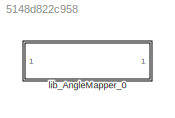
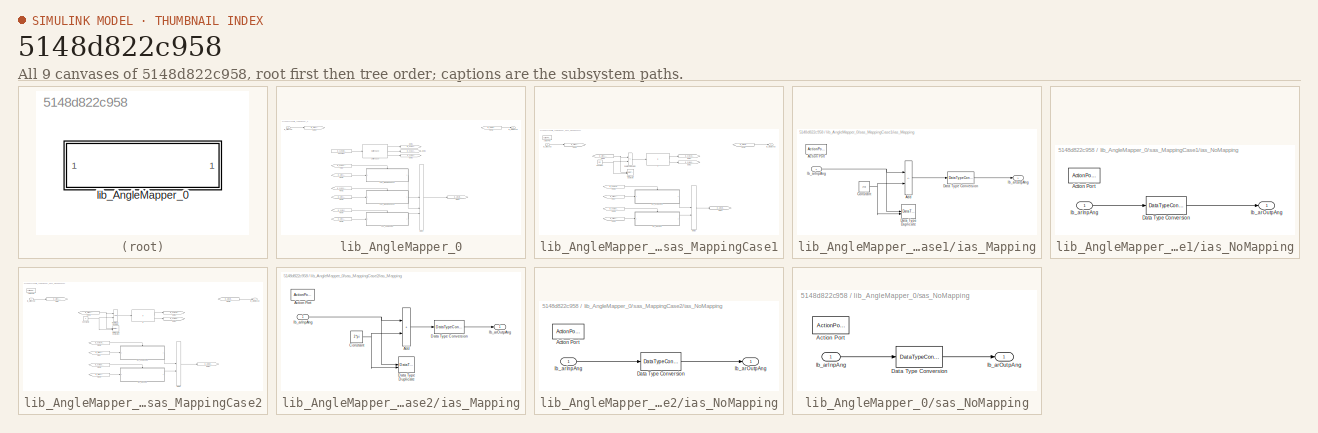
[diagram: thumbnail index - all 9 canvases of the model, root first then tree order]
MODEL slx_5148d822c958
KIND library
CONFIG AbsTol = auto
CONFIG EnableMultiTasking = off
CONFIG FixedStep = auto
CONFIG MaxStep = auto
CONFIG MinStep = auto
CONFIG RelTol = 1e-3
CONFIG SampleTimeConstraint = Unconstrained
CONFIG SolverName = VariableStepAuto
CONFIG StartTime = 0.0
CONFIG StopTime = 10.0
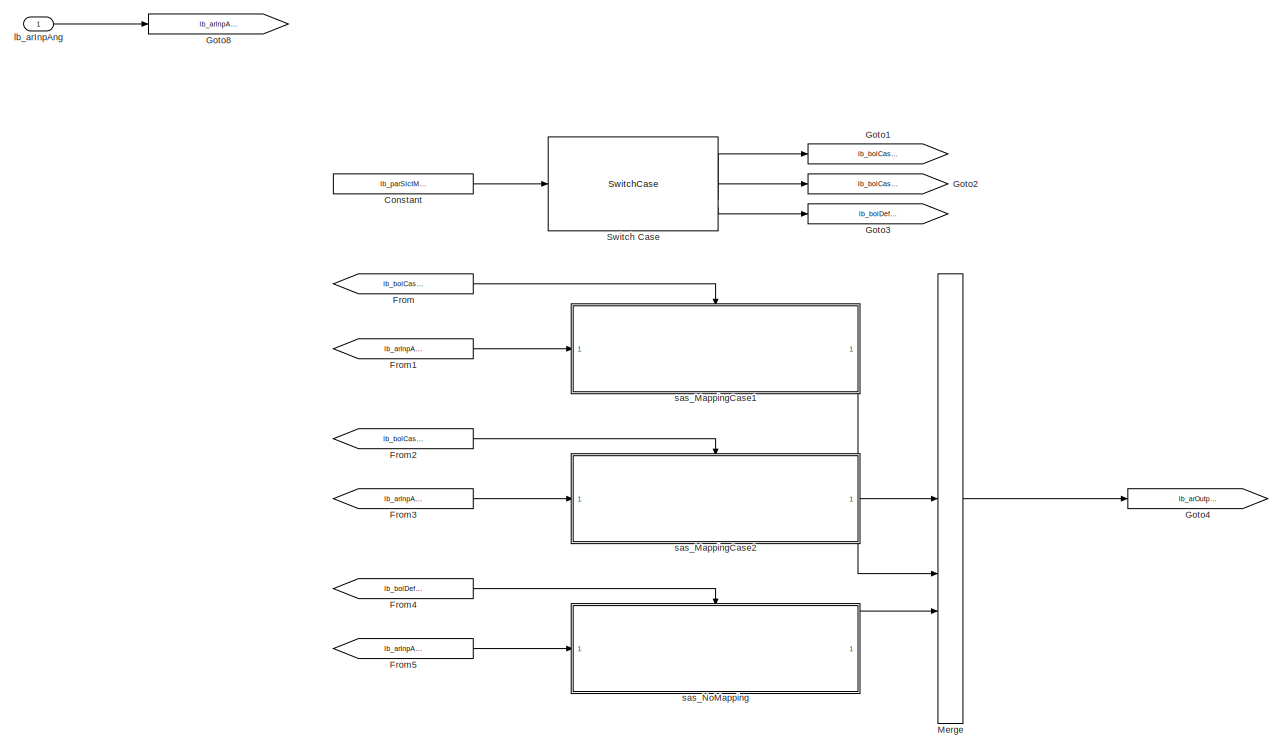
[diagram: lib_AngleMapper_0 - part 1/2, most of the canvas]
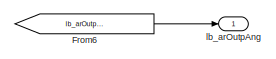
[diagram: lib_AngleMapper_0 - part 2/2, top right region]
BLOCK [SubSystem] lib_AngleMapper_0
BLOCK [Constant] lib_AngleMapper_0/Constant
  OutDataTypeStr = uint8
  Value = lb_parSlctMappModeNum
BLOCK [From] lib_AngleMapper_0/From
  GotoTag = lb_bolCase1
BLOCK [From] lib_AngleMapper_0/From1
  GotoTag = lb_arInpAng
BLOCK [From] lib_AngleMapper_0/From2
  GotoTag = lb_bolCase2
BLOCK [From] lib_AngleMapper_0/From3
  GotoTag = lb_arInpAng
BLOCK [From] lib_AngleMapper_0/From4
  GotoTag = lb_bolDefCase
BLOCK [From] lib_AngleMapper_0/From5
  GotoTag = lb_arInpAng
BLOCK [From] lib_AngleMapper_0/From6
  GotoTag = lb_arOutpAng
BLOCK [Goto] lib_AngleMapper_0/Goto1
  GotoTag = lb_bolCase1
BLOCK [Goto] lib_AngleMapper_0/Goto2
  GotoTag = lb_bolCase2
BLOCK [Goto] lib_AngleMapper_0/Goto3
  GotoTag = lb_bolDefCase
BLOCK [Goto] lib_AngleMapper_0/Goto4
  GotoTag = lb_arOutpAng
BLOCK [Goto] lib_AngleMapper_0/Goto8
  GotoTag = lb_arInpAng
BLOCK [Merge] lib_AngleMapper_0/Merge
  Inputs = 3
BLOCK [SwitchCase] lib_AngleMapper_0/Switch Case
  CaseConditions = {1,2}
BLOCK [Inport] lib_AngleMapper_0/lb_arInpAng
BLOCK [Outport] lib_AngleMapper_0/lb_arOutpAng
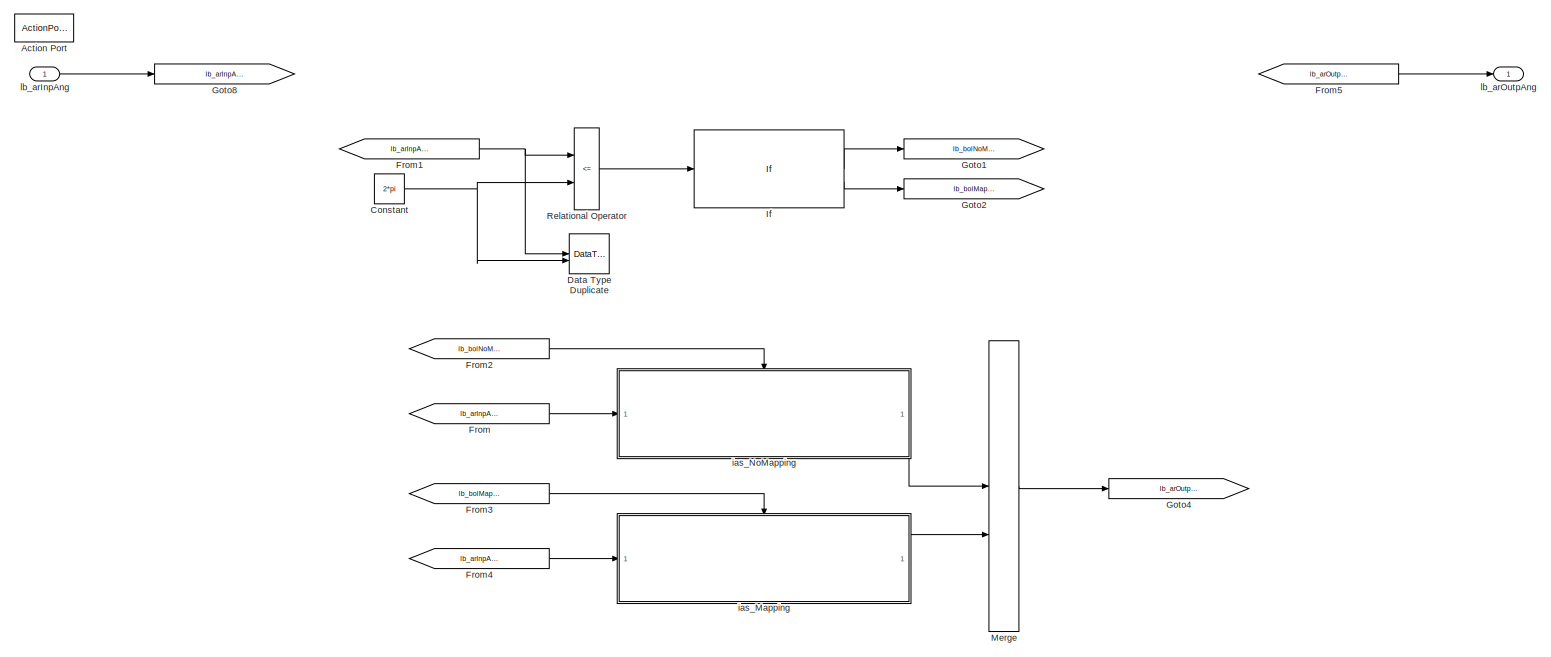
[diagram: lib_AngleMapper_0/sas_MappingCase1 - part 1/1, most of the canvas]
BLOCK [SubSystem] lib_AngleMapper_0/sas_MappingCase1
  TreatAsAtomicUnit = on
BLOCK [ActionPort] lib_AngleMapper_0/sas_MappingCase1/Action Port
BLOCK [Constant] lib_AngleMapper_0/sas_MappingCase1/Constant
  OutDataTypeStr = Inherit: Inherit via back propagation
  Value = 2*pi
BLOCK [DataTypeDuplicate] lib_AngleMapper_0/sas_MappingCase1/Data Type Duplicate
BLOCK [From] lib_AngleMapper_0/sas_MappingCase1/From
  GotoTag = lb_arInpAng
BLOCK [From] lib_AngleMapper_0/sas_MappingCase1/From1
  GotoTag = lb_arInpAng
BLOCK [From] lib_AngleMapper_0/sas_MappingCase1/From2
  GotoTag = lb_bolNoMappEnbl
BLOCK [From] lib_AngleMapper_0/sas_MappingCase1/From3
  GotoTag = lb_bolMappEnbl
BLOCK [From] lib_AngleMapper_0/sas_MappingCase1/From4
  GotoTag = lb_arInpAng
BLOCK [From] lib_AngleMapper_0/sas_MappingCase1/From5
  GotoTag = lb_arOutpAng
BLOCK [Goto] lib_AngleMapper_0/sas_MappingCase1/Goto1
  GotoTag = lb_bolNoMappEnbl
BLOCK [Goto] lib_AngleMapper_0/sas_MappingCase1/Goto2
  GotoTag = lb_bolMappEnbl
BLOCK [Goto] lib_AngleMapper_0/sas_MappingCase1/Goto4
  GotoTag = lb_arOutpAng
BLOCK [Goto] lib_AngleMapper_0/sas_MappingCase1/Goto8
  GotoTag = lb_arInpAng
BLOCK [If] lib_AngleMapper_0/sas_MappingCase1/If
  IfExpression = u1
BLOCK [Merge] lib_AngleMapper_0/sas_MappingCase1/Merge
BLOCK [RelationalOperator] lib_AngleMapper_0/sas_MappingCase1/Relational Operator
  InputSameDT = off
  Operator = <=
  OutDataTypeStr = boolean
  RndMeth = Simplest
BLOCK [SubSystem] lib_AngleMapper_0/sas_MappingCase1/ias_Mapping
  TreatAsAtomicUnit = on
BLOCK [ActionPort] lib_AngleMapper_0/sas_MappingCase1/ias_Mapping/Action Port
BLOCK [Sum] lib_AngleMapper_0/sas_MappingCase1/ias_Mapping/Add
  IconShape = rectangular
  Inputs = +-
  OutDataTypeStr = Inherit: Same as first input
BLOCK [Constant] lib_AngleMapper_0/sas_MappingCase1/ias_Mapping/Constant
  OutDataTypeStr = Inherit: Inherit via back propagation
  Value = 2*pi
BLOCK [DataTypeConversion] lib_AngleMapper_0/sas_MappingCase1/ias_Mapping/Data Type Conversion
  OutDataTypeStr = lb_parOutpDataType
  RndMeth = Floor
  SaturateOnIntegerOverflow = off
BLOCK [DataTypeDuplicate] lib_AngleMapper_0/sas_MappingCase1/ias_Mapping/Data Type Duplicate
BLOCK [Inport] lib_AngleMapper_0/sas_MappingCase1/ias_Mapping/lb_arInpAng
BLOCK [Outport] lib_AngleMapper_0/sas_MappingCase1/ias_Mapping/lb_arOutpAng
BLOCK [SubSystem] lib_AngleMapper_0/sas_MappingCase1/ias_NoMapping
  TreatAsAtomicUnit = on
BLOCK [ActionPort] lib_AngleMapper_0/sas_MappingCase1/ias_NoMapping/Action Port
BLOCK [DataTypeConversion] lib_AngleMapper_0/sas_MappingCase1/ias_NoMapping/Data Type Conversion
  OutDataTypeStr = lb_parOutpDataType
  RndMeth = Floor
  SaturateOnIntegerOverflow = off
BLOCK [Inport] lib_AngleMapper_0/sas_MappingCase1/ias_NoMapping/lb_arInpAng
BLOCK [Outport] lib_AngleMapper_0/sas_MappingCase1/ias_NoMapping/lb_arOutpAng
BLOCK [Inport] lib_AngleMapper_0/sas_MappingCase1/lb_arInpAng
BLOCK [Outport] lib_AngleMapper_0/sas_MappingCase1/lb_arOutpAng
BLOCK [SubSystem] lib_AngleMapper_0/sas_MappingCase2
  TreatAsAtomicUnit = on
BLOCK [ActionPort] lib_AngleMapper_0/sas_MappingCase2/Action Port
BLOCK [Constant] lib_AngleMapper_0/sas_MappingCase2/Constant2
  OutDataTypeStr = Inherit: Inherit via back propagation
  Value = 0
BLOCK [DataTypeDuplicate] lib_AngleMapper_0/sas_MappingCase2/Data Type Duplicate2
BLOCK [From] lib_AngleMapper_0/sas_MappingCase2/From
  GotoTag = lb_arInpAng
BLOCK [From] lib_AngleMapper_0/sas_MappingCase2/From1
  GotoTag = lb_arInpAng
BLOCK [From] lib_AngleMapper_0/sas_MappingCase2/From2
  GotoTag = lb_bolNoMappEnbl
BLOCK [From] lib_AngleMapper_0/sas_MappingCase2/From3
  GotoTag = lb_bolMappEnbl
BLOCK [From] lib_AngleMapper_0/sas_MappingCase2/From4
  GotoTag = lb_arInpAng
BLOCK [From] lib_AngleMapper_0/sas_MappingCase2/From5
  GotoTag = lb_arOutpAng
BLOCK [Goto] lib_AngleMapper_0/sas_MappingCase2/Goto
  GotoTag = lb_arInpAng
BLOCK [Goto] lib_AngleMapper_0/sas_MappingCase2/Goto1
  GotoTag = lb_bolNoMappEnbl
BLOCK [Goto] lib_AngleMapper_0/sas_MappingCase2/Goto2
  GotoTag = lb_bolMappEnbl
BLOCK [Goto] lib_AngleMapper_0/sas_MappingCase2/Goto4
  GotoTag = lb_arOutpAng
BLOCK [If] lib_AngleMapper_0/sas_MappingCase2/If
  IfExpression = u1
BLOCK [Merge] lib_AngleMapper_0/sas_MappingCase2/Merge
BLOCK [RelationalOperator] lib_AngleMapper_0/sas_MappingCase2/Relational Operator1
  InputSameDT = off
  OutDataTypeStr = boolean
  RndMeth = Simplest
BLOCK [SubSystem] lib_AngleMapper_0/sas_MappingCase2/ias_Mapping
  TreatAsAtomicUnit = on
BLOCK [ActionPort] lib_AngleMapper_0/sas_MappingCase2/ias_Mapping/Action Port
BLOCK [Sum] lib_AngleMapper_0/sas_MappingCase2/ias_Mapping/Add
  IconShape = rectangular
  OutDataTypeStr = Inherit: Same as first input
BLOCK [Constant] lib_AngleMapper_0/sas_MappingCase2/ias_Mapping/Constant
  OutDataTypeStr = Inherit: Inherit via back propagation
  Value = 2*pi
BLOCK [DataTypeConversion] lib_AngleMapper_0/sas_MappingCase2/ias_Mapping/Data Type Conversion
  OutDataTypeStr = lb_parOutpDataType
  RndMeth = Floor
  SaturateOnIntegerOverflow = off
BLOCK [DataTypeDuplicate] lib_AngleMapper_0/sas_MappingCase2/ias_Mapping/Data Type Duplicate
BLOCK [Inport] lib_AngleMapper_0/sas_MappingCase2/ias_Mapping/lb_arInpAng
BLOCK [Outport] lib_AngleMapper_0/sas_MappingCase2/ias_Mapping/lb_arOutpAng
BLOCK [SubSystem] lib_AngleMapper_0/sas_MappingCase2/ias_NoMapping
  TreatAsAtomicUnit = on
BLOCK [ActionPort] lib_AngleMapper_0/sas_MappingCase2/ias_NoMapping/Action Port
BLOCK [DataTypeConversion] lib_AngleMapper_0/sas_MappingCase2/ias_NoMapping/Data Type Conversion
  OutDataTypeStr = lb_parOutpDataType
  RndMeth = Floor
  SaturateOnIntegerOverflow = off
BLOCK [Inport] lib_AngleMapper_0/sas_MappingCase2/ias_NoMapping/lb_arInpAng
BLOCK [Outport] lib_AngleMapper_0/sas_MappingCase2/ias_NoMapping/lb_arOutpAng
BLOCK [Inport] lib_AngleMapper_0/sas_MappingCase2/lb_arInpAng
BLOCK [Outport] lib_AngleMapper_0/sas_MappingCase2/lb_arOutpAng
BLOCK [SubSystem] lib_AngleMapper_0/sas_NoMapping
  TreatAsAtomicUnit = on
BLOCK [ActionPort] lib_AngleMapper_0/sas_NoMapping/Action Port
BLOCK [DataTypeConversion] lib_AngleMapper_0/sas_NoMapping/Data Type Conversion
  OutDataTypeStr = lb_parOutpDataType
  RndMeth = Floor
  SaturateOnIntegerOverflow = off
BLOCK [Inport] lib_AngleMapper_0/sas_NoMapping/lb_arInpAng
BLOCK [Outport] lib_AngleMapper_0/sas_NoMapping/lb_arOutpAng
LINE lib_AngleMapper_0/Constant:1 -> lib_AngleMapper_0/Switch Case:1
LINE lib_AngleMapper_0/From1:1 -> lib_AngleMapper_0/sas_MappingCase1:1
LINE lib_AngleMapper_0/From2:1 -> lib_AngleMapper_0/sas_MappingCase2:ifaction
LINE lib_AngleMapper_0/From3:1 -> lib_AngleMapper_0/sas_MappingCase2:1
LINE lib_AngleMapper_0/From4:1 -> lib_AngleMapper_0/sas_NoMapping:ifaction
LINE lib_AngleMapper_0/From5:1 -> lib_AngleMapper_0/sas_NoMapping:1
LINE lib_AngleMapper_0/From6:1 -> lib_AngleMapper_0/lb_arOutpAng:1
LINE lib_AngleMapper_0/From:1 -> lib_AngleMapper_0/sas_MappingCase1:ifaction
LINE lib_AngleMapper_0/Merge:1 -> lib_AngleMapper_0/Goto4:1
LINE lib_AngleMapper_0/Switch Case:1 -> lib_AngleMapper_0/Goto1:1
LINE lib_AngleMapper_0/Switch Case:2 -> lib_AngleMapper_0/Goto2:1
LINE lib_AngleMapper_0/Switch Case:3 -> lib_AngleMapper_0/Goto3:1
LINE lib_AngleMapper_0/lb_arInpAng:1 -> lib_AngleMapper_0/Goto8:1
NET lib_AngleMapper_0/sas_MappingCase1/Constant:1 -> lib_AngleMapper_0/sas_MappingCase1/Data Type Duplicate:2, lib_AngleMapper_0/sas_MappingCase1/Relational Operator:2
NET lib_AngleMapper_0/sas_MappingCase1/From1:1 -> lib_AngleMapper_0/sas_MappingCase1/Data Type Duplicate:1, lib_AngleMapper_0/sas_MappingCase1/Relational Operator:1
LINE lib_AngleMapper_0/sas_MappingCase1/From2:1 -> lib_AngleMapper_0/sas_MappingCase1/ias_NoMapping:ifaction
LINE lib_AngleMapper_0/sas_MappingCase1/From3:1 -> lib_AngleMapper_0/sas_MappingCase1/ias_Mapping:ifaction
LINE lib_AngleMapper_0/sas_MappingCase1/From4:1 -> lib_AngleMapper_0/sas_MappingCase1/ias_Mapping:1
LINE lib_AngleMapper_0/sas_MappingCase1/From5:1 -> lib_AngleMapper_0/sas_MappingCase1/lb_arOutpAng:1
LINE lib_AngleMapper_0/sas_MappingCase1/From:1 -> lib_AngleMapper_0/sas_MappingCase1/ias_NoMapping:1
LINE lib_AngleMapper_0/sas_MappingCase1/If:1 -> lib_AngleMapper_0/sas_MappingCase1/Goto1:1
LINE lib_AngleMapper_0/sas_MappingCase1/If:2 -> lib_AngleMapper_0/sas_MappingCase1/Goto2:1
LINE lib_AngleMapper_0/sas_MappingCase1/Merge:1 -> lib_AngleMapper_0/sas_MappingCase1/Goto4:1
LINE lib_AngleMapper_0/sas_MappingCase1/Relational Operator:1 -> lib_AngleMapper_0/sas_MappingCase1/If:1
LINE lib_AngleMapper_0/sas_MappingCase1/ias_Mapping/Add:1 -> lib_AngleMapper_0/sas_MappingCase1/ias_Mapping/Data Type Conversion:1
NET lib_AngleMapper_0/sas_MappingCase1/ias_Mapping/Constant:1 -> lib_AngleMapper_0/sas_MappingCase1/ias_Mapping/Add:2, lib_AngleMapper_0/sas_MappingCase1/ias_Mapping/Data Type Duplicate:2
LINE lib_AngleMapper_0/sas_MappingCase1/ias_Mapping/Data Type Conversion:1 -> lib_AngleMapper_0/sas_MappingCase1/ias_Mapping/lb_arOutpAng:1
NET lib_AngleMapper_0/sas_MappingCase1/ias_Mapping/lb_arInpAng:1 -> lib_AngleMapper_0/sas_MappingCase1/ias_Mapping/Add:1, lib_AngleMapper_0/sas_MappingCase1/ias_Mapping/Data Type Duplicate:1
LINE lib_AngleMapper_0/sas_MappingCase1/ias_Mapping:1 -> lib_AngleMapper_0/sas_MappingCase1/Merge:2
LINE lib_AngleMapper_0/sas_MappingCase1/ias_NoMapping/Data Type Conversion:1 -> lib_AngleMapper_0/sas_MappingCase1/ias_NoMapping/lb_arOutpAng:1
LINE lib_AngleMapper_0/sas_MappingCase1/ias_NoMapping/lb_arInpAng:1 -> lib_AngleMapper_0/sas_MappingCase1/ias_NoMapping/Data Type Conversion:1
LINE lib_AngleMapper_0/sas_MappingCase1/ias_NoMapping:1 -> lib_AngleMapper_0/sas_MappingCase1/Merge:1
LINE lib_AngleMapper_0/sas_MappingCase1/lb_arInpAng:1 -> lib_AngleMapper_0/sas_MappingCase1/Goto8:1
LINE lib_AngleMapper_0/sas_MappingCase1:1 -> lib_AngleMapper_0/Merge:1
NET lib_AngleMapper_0/sas_MappingCase2/Constant2:1 -> lib_AngleMapper_0/sas_MappingCase2/Data Type Duplicate2:2, lib_AngleMapper_0/sas_MappingCase2/Relational Operator1:2
NET lib_AngleMapper_0/sas_MappingCase2/From1:1 -> lib_AngleMapper_0/sas_MappingCase2/Data Type Duplicate2:1, lib_AngleMapper_0/sas_MappingCase2/Relational Operator1:1
LINE lib_AngleMapper_0/sas_MappingCase2/From2:1 -> lib_AngleMapper_0/sas_MappingCase2/ias_NoMapping:ifaction
LINE lib_AngleMapper_0/sas_MappingCase2/From3:1 -> lib_AngleMapper_0/sas_MappingCase2/ias_Mapping:ifaction
LINE lib_AngleMapper_0/sas_MappingCase2/From4:1 -> lib_AngleMapper_0/sas_MappingCase2/ias_Mapping:1
LINE lib_AngleMapper_0/sas_MappingCase2/From5:1 -> lib_AngleMapper_0/sas_MappingCase2/lb_arOutpAng:1
LINE lib_AngleMapper_0/sas_MappingCase2/From:1 -> lib_AngleMapper_0/sas_MappingCase2/ias_NoMapping:1
LINE lib_AngleMapper_0/sas_MappingCase2/If:1 -> lib_AngleMapper_0/sas_MappingCase2/Goto1:1
LINE lib_AngleMapper_0/sas_MappingCase2/If:2 -> lib_AngleMapper_0/sas_MappingCase2/Goto2:1
LINE lib_AngleMapper_0/sas_MappingCase2/Merge:1 -> lib_AngleMapper_0/sas_MappingCase2/Goto4:1
LINE lib_AngleMapper_0/sas_MappingCase2/Relational Operator1:1 -> lib_AngleMapper_0/sas_MappingCase2/If:1
LINE lib_AngleMapper_0/sas_MappingCase2/ias_Mapping/Add:1 -> lib_AngleMapper_0/sas_MappingCase2/ias_Mapping/Data Type Conversion:1
NET lib_AngleMapper_0/sas_MappingCase2/ias_Mapping/Constant:1 -> lib_AngleMapper_0/sas_MappingCase2/ias_Mapping/Add:2, lib_AngleMapper_0/sas_MappingCase2/ias_Mapping/Data Type Duplicate:2
LINE lib_AngleMapper_0/sas_MappingCase2/ias_Mapping/Data Type Conversion:1 -> lib_AngleMapper_0/sas_MappingCase2/ias_Mapping/lb_arOutpAng:1
NET lib_AngleMapper_0/sas_MappingCase2/ias_Mapping/lb_arInpAng:1 -> lib_AngleMapper_0/sas_MappingCase2/ias_Mapping/Add:1, lib_AngleMapper_0/sas_MappingCase2/ias_Mapping/Data Type Duplicate:1
LINE lib_AngleMapper_0/sas_MappingCase2/ias_Mapping:1 -> lib_AngleMapper_0/sas_MappingCase2/Merge:2
LINE lib_AngleMapper_0/sas_MappingCase2/ias_NoMapping/Data Type Conversion:1 -> lib_AngleMapper_0/sas_MappingCase2/ias_NoMapping/lb_arOutpAng:1
LINE lib_AngleMapper_0/sas_MappingCase2/ias_NoMapping/lb_arInpAng:1 -> lib_AngleMapper_0/sas_MappingCase2/ias_NoMapping/Data Type Conversion:1
LINE lib_AngleMapper_0/sas_MappingCase2/ias_NoMapping:1 -> lib_AngleMapper_0/sas_MappingCase2/Merge:1
LINE lib_AngleMapper_0/sas_MappingCase2/lb_arInpAng:1 -> lib_AngleMapper_0/sas_MappingCase2/Goto:1
LINE lib_AngleMapper_0/sas_MappingCase2:1 -> lib_AngleMapper_0/Merge:2
LINE lib_AngleMapper_0/sas_NoMapping/Data Type Conversion:1 -> lib_AngleMapper_0/sas_NoMapping/lb_arOutpAng:1
LINE lib_AngleMapper_0/sas_NoMapping/lb_arInpAng:1 -> lib_AngleMapper_0/sas_NoMapping/Data Type Conversion:1
LINE lib_AngleMapper_0/sas_NoMapping:1 -> lib_AngleMapper_0/Merge:3
note: NET lines group one-source signal fan-out (src -> all destinations, sorted); 1:1 wires keep LINE
